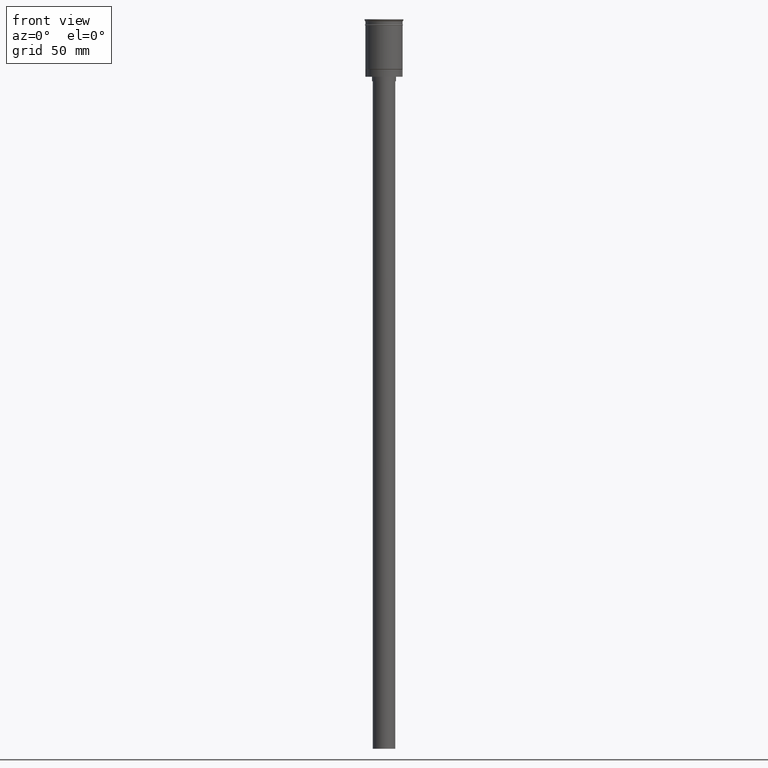
[diagram: clean part render]
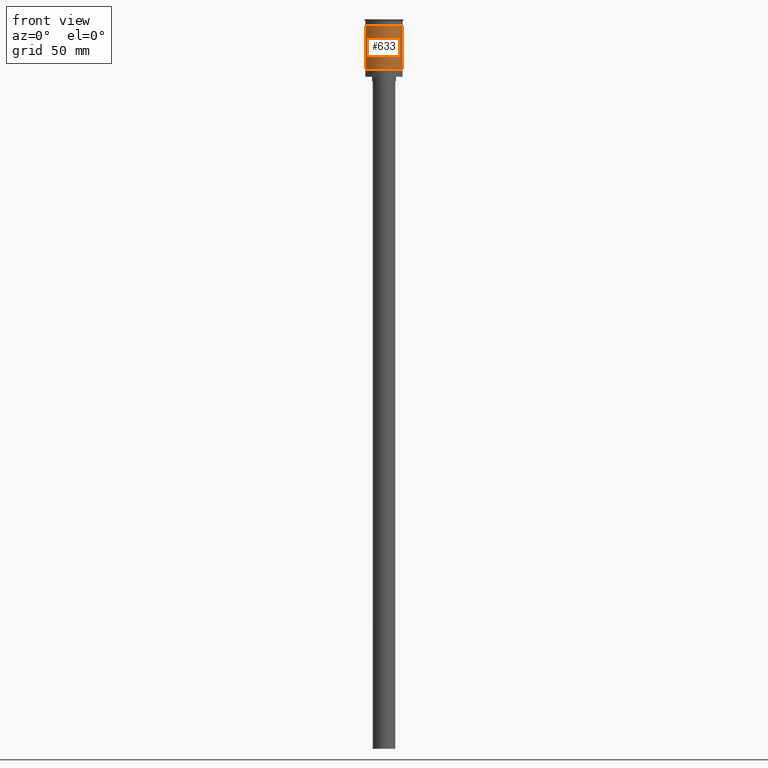
[diagram: same view with one face highlighted and labeled with its STEP entity id]
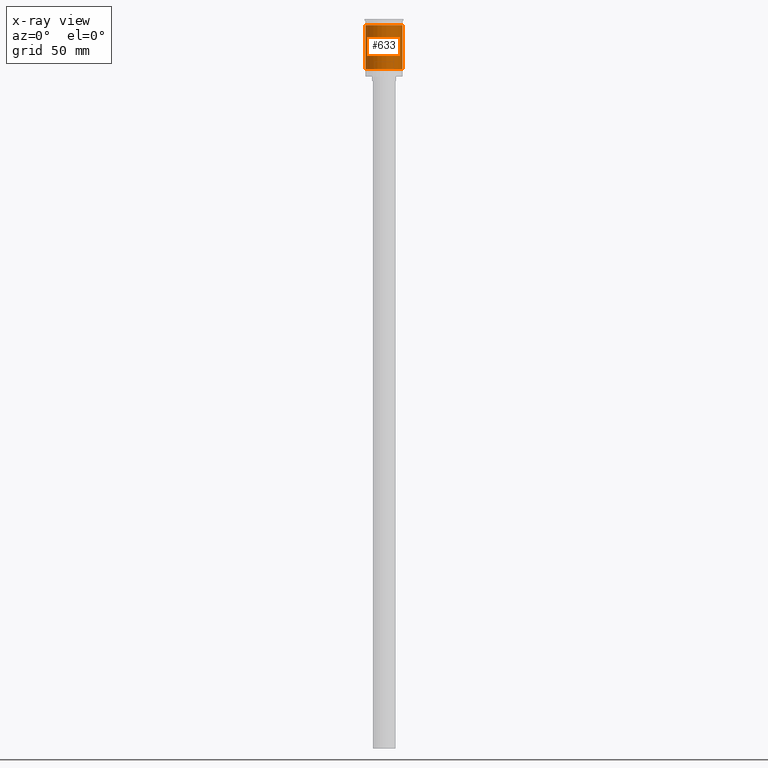
[diagram: x-ray of the same camera — body ghosted, the highlighted face saturated]
A machine part, front view. The second image highlights one B-rep face of the part: STEP entity #633.
The next image is the same camera in x-ray: the body ghosted, the highlighted face saturated — about 0% of this face is hidden behind the body in this view.
In plain terms, the highlighted cylindrical surface (edge-blend (fillet) strip) has radius 12.5 mm, axis along (-0, -0, 1).
Its self-contained STEP definition (entity closure, byte-faithful):
#30 = VECTOR ( 'NONE', #1269, 1000.000000000000000 ) ;
#146 = CARTESIAN_POINT ( 'NONE',  ( 12.49999999999999822, 0.000000000000000000, -3.999999999999996447 ) ) ;
#192 = VERTEX_POINT ( 'NONE', #146 ) ;
#245 = DIRECTION ( 'NONE',  ( -1.000000000000000000, 0.000000000000000000, 0.000000000000000000 ) ) ;
#349 = DIRECTION ( 'NONE',  ( -0.000000000000000000, -0.000000000000000000, 1.000000000000000000 ) ) ;
#368 = DIRECTION ( 'NONE',  ( -0.000000000000000000, -0.000000000000000000, 1.000000000000000000 ) ) ;
#379 = DIRECTION ( 'NONE',  ( 1.000000000000000000, 0.000000000000000000, 0.000000000000000000 ) ) ;
#388 = ORIENTED_EDGE ( 'NONE', *, *, #1562, .F. ) ;
#402 = LINE ( 'NONE', #408, #30 ) ;
#408 = CARTESIAN_POINT ( 'NONE',  ( 12.49999999999999645, 0.000000000000000000, 0.000000000000000000 ) ) ;
#468 = LINE ( 'NONE', #839, #655 ) ;
#481 = EDGE_CURVE ( 'NONE', #709, #1093, #1323, .T. ) ;
#494 = AXIS2_PLACEMENT_3D ( 'NONE', #871, #1253, #379 ) ;
#503 = FACE_OUTER_BOUND ( 'NONE', #1153, .T. ) ;
#533 = EDGE_CURVE ( 'NONE', #1520, #192, #749, .T. ) ;
#604 = DIRECTION ( 'NONE',  ( 1.000000000000000000, 0.000000000000000000, 0.000000000000000000 ) ) ;
#633 = ADVANCED_FACE ( 'NONE', ( #503 ), #1345, .T. ) ;
#655 = VECTOR ( 'NONE', #821, 1000.000000000000000 ) ;
#709 = VERTEX_POINT ( 'NONE', #919 ) ;
#749 = CIRCLE ( 'NONE', #494, 12.49999999999999822 ) ;
#821 = DIRECTION ( 'NONE',  ( -0.000000000000000000, -0.000000000000000000, 1.000000000000000000 ) ) ;
#839 = CARTESIAN_POINT ( 'NONE',  ( -12.49999999999999645, 1.530808498934191127E-15, 0.000000000000000000 ) ) ;
#841 = ORIENTED_EDGE ( 'NONE', *, *, #1061, .T. ) ;
#871 = CARTESIAN_POINT ( 'NONE',  ( 0.000000000000000000, 0.000000000000000000, -3.999999999999996447 ) ) ;
#919 = CARTESIAN_POINT ( 'NONE',  ( -12.49999999999999289, 0.000000000000000000, -33.30000000000005400 ) ) ;
#963 = ORIENTED_EDGE ( 'NONE', *, *, #533, .F. ) ;
#1013 = AXIS2_PLACEMENT_3D ( 'NONE', #1219, #349, #245 ) ;
#1043 = AXIS2_PLACEMENT_3D ( 'NONE', #1473, #368, #604 ) ;
#1061 = EDGE_CURVE ( 'NONE', #1093, #192, #402, .T. ) ;
#1093 = VERTEX_POINT ( 'NONE', #1161 ) ;
#1153 = EDGE_LOOP ( 'NONE', ( #388, #1602, #841, #963 ) ) ;
#1161 = CARTESIAN_POINT ( 'NONE',  ( 12.49999999999999645, 1.530808498934191127E-15, -33.30000000000005400 ) ) ;
#1219 = CARTESIAN_POINT ( 'NONE',  ( 0.000000000000000000, 0.000000000000000000, -33.30000000000005400 ) ) ;
#1253 = DIRECTION ( 'NONE',  ( -0.000000000000000000, -0.000000000000000000, 1.000000000000000000 ) ) ;
#1269 = DIRECTION ( 'NONE',  ( -0.000000000000000000, -0.000000000000000000, 1.000000000000000000 ) ) ;
#1323 = CIRCLE ( 'NONE', #1013, 12.49999999999999645 ) ;
#1345 = CYLINDRICAL_SURFACE ( 'NONE', #1043, 12.49999999999999645 ) ;
#1415 = CARTESIAN_POINT ( 'NONE',  ( -12.50000000000000000, 1.530808498934191521E-15, -3.999999999999996447 ) ) ;
#1473 = CARTESIAN_POINT ( 'NONE',  ( 0.000000000000000000, 0.000000000000000000, 0.000000000000000000 ) ) ;
#1520 = VERTEX_POINT ( 'NONE', #1415 ) ;
#1562 = EDGE_CURVE ( 'NONE', #709, #1520, #468, .T. ) ;
#1602 = ORIENTED_EDGE ( 'NONE', *, *, #481, .T. ) ;